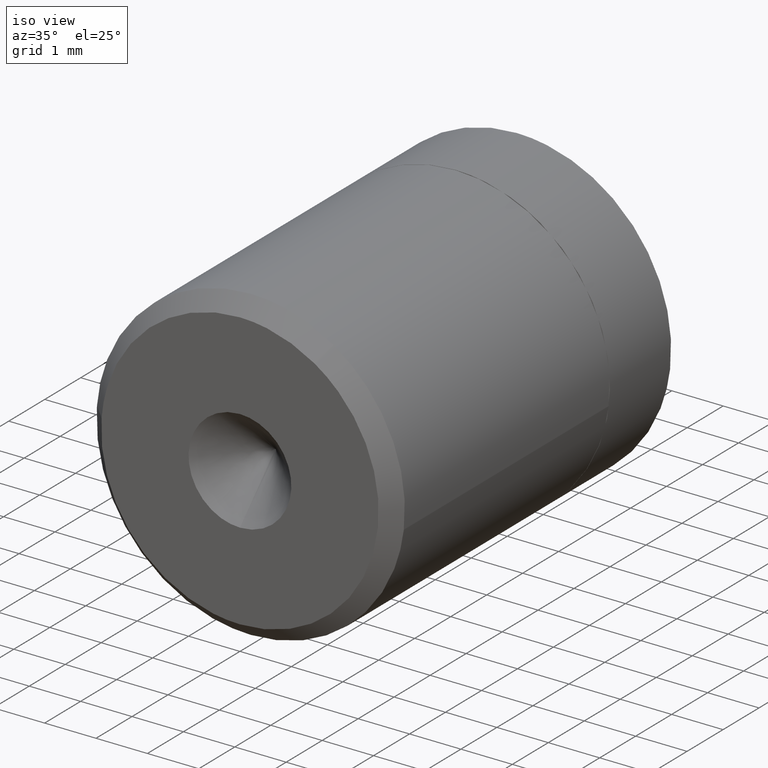
[diagram: clean part render]
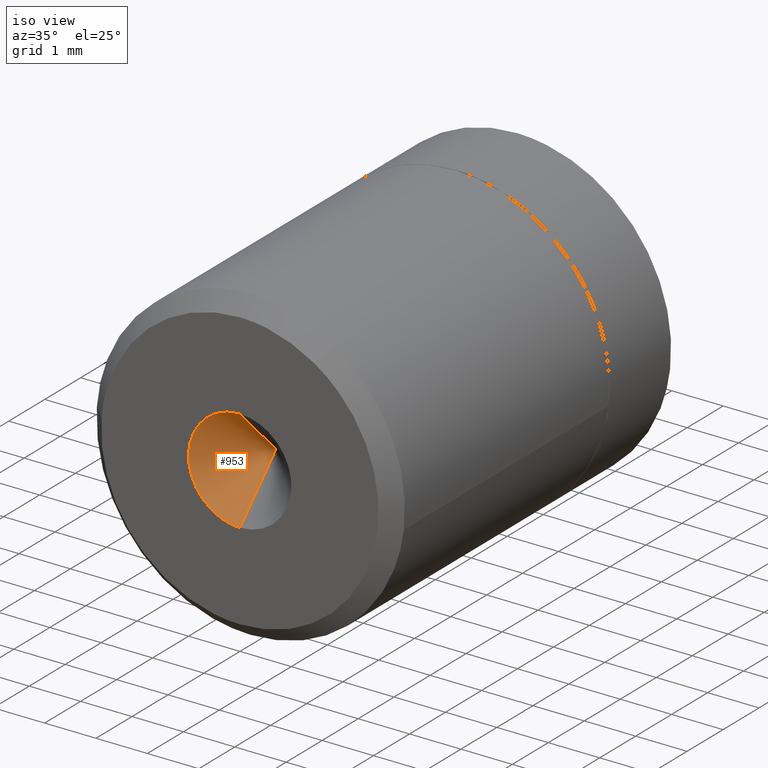
[diagram: same view with one face highlighted and labeled with its STEP entity id]
A machine part, iso view. The second image highlights one B-rep face of the part: STEP entity #953.
In plain terms, the highlighted face is a freeform B-spline surface patch.
Its self-contained STEP definition (entity closure, byte-faithful):
#902=CARTESIAN_POINT('',(0.0,1.000000000000002,-2.449213E-015));
#903=CARTESIAN_POINT('',(0.026847732608264,-0.025625000000000,-1.025273543928060));
#904=CARTESIAN_POINT('',(0.0,1.000000000000002,-2.449213E-015));
#905=CARTESIAN_POINT('',(-1.053565150959501,-0.025625000000000,-1.053565150959507));
#906=CARTESIAN_POINT('',(0.0,1.000000000000002,-2.449213E-015));
#907=CARTESIAN_POINT('',(-1.025273543928058,-0.025625000000000,0.026847732608258));
#908=CARTESIAN_POINT('',(0.0,1.000000000000002,-2.449213E-015));
#909=CARTESIAN_POINT('',(-0.996981936896615,-0.025625000000000,1.107260616176023));
#910=CARTESIAN_POINT('',(0.0,1.000000000000002,-2.449213E-015));
#911=CARTESIAN_POINT('',(0.080469610055870,-0.025625000000000,1.022463340410039));
#919=(BOUNDED_SURFACE()B_SPLINE_SURFACE(1,2,((#902,#904,#906,#908,#910),(#903,#905,#907,#909,#911)),.UNSPECIFIED.,.F.,.F.,.U.)B_SPLINE_SURFACE_WITH_KNOTS((2,2),(3,2,3),(0.0,1.0),(0.0,1.0,2.0),.UNSPECIFIED.)GEOMETRIC_REPRESENTATION_ITEM()RATIONAL_B_SPLINE_SURFACE(((1.0,0.688354575693754,1.0,0.688354575693754,1.0),(1.0,0.688354575693754,1.0,0.688354575693754,1.0)))REPRESENTATION_ITEM('')SURFACE());
#920=CARTESIAN_POINT('',(0.0,3.636595E-016,0.999999999999998));
#921=VERTEX_POINT('',#920);
#922=CARTESIAN_POINT('',(0.0,3.636595E-016,-1.000000000000003));
#923=VERTEX_POINT('',#922);
#924=CARTESIAN_POINT('',(0.0,0.0,0.999999999999998));
#925=CARTESIAN_POINT('',(-1.0,0.0,0.999999999999998));
#926=CARTESIAN_POINT('',(-1.0,0.0,-2.449213E-015));
#927=CARTESIAN_POINT('',(-1.0,0.0,-1.000000000000002));
#928=CARTESIAN_POINT('',(0.0,0.0,-1.000000000000002));
#936=(BOUNDED_CURVE()B_SPLINE_CURVE(2,(#924,#925,#926,#927,#928),.UNSPECIFIED.,.F.,.U.)B_SPLINE_CURVE_WITH_KNOTS((3,2,3),(0.0,0.500000000000000,1.0),.UNSPECIFIED.)CURVE()GEOMETRIC_REPRESENTATION_ITEM()RATIONAL_B_SPLINE_CURVE((1.0,0.707106781186548,1.0,0.707106781186548,1.0))REPRESENTATION_ITEM(''));
#937=EDGE_CURVE('',#921,#923,#936,.T.);
#938=ORIENTED_EDGE('',*,*,#937,.T.);
#939=CARTESIAN_POINT('',(0.0,1.0,-2.449213E-015));
#940=VERTEX_POINT('',#939);
#941=CARTESIAN_POINT('',(0.0,1.0,-2.449213E-015));
#942=CARTESIAN_POINT('',(0.0,3.636595E-016,-1.000000000000003));
#943=QUASI_UNIFORM_CURVE('',1,(#941,#942),.UNSPECIFIED.,.F.,.U.);
#944=EDGE_CURVE('',#940,#923,#943,.T.);
#945=ORIENTED_EDGE('',*,*,#944,.F.);
#946=CARTESIAN_POINT('',(0.0,1.0,-2.449213E-015));
#947=CARTESIAN_POINT('',(0.0,3.636595E-016,0.999999999999998));
#948=QUASI_UNIFORM_CURVE('',1,(#946,#947),.UNSPECIFIED.,.F.,.U.);
#949=EDGE_CURVE('',#940,#921,#948,.T.);
#950=ORIENTED_EDGE('',*,*,#949,.T.);
#951=EDGE_LOOP('',(#938,#945,#950));
#952=FACE_OUTER_BOUND('',#951,.T.);
#953=ADVANCED_FACE('',(#952),#919,.F.);